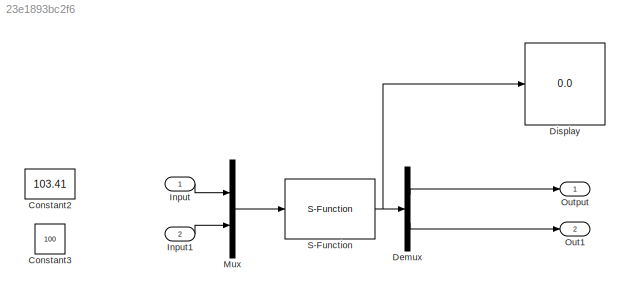
MODEL slx_23e1893bc2f6
KIND model
CONFIG AbsTol = auto
CONFIG EnableMultiTasking = off
CONFIG FixedStep = auto
CONFIG MaxStep = auto
CONFIG MinStep = auto
CONFIG RelTol = 1e-3
CONFIG SampleTimeConstraint = Unconstrained
CONFIG SolverName = VariableStepAuto
CONFIG StartTime = 0.0
CONFIG StopTime = 10.0
BLOCK [Constant] Constant2
  Value = 103.41
BLOCK [Constant] Constant3
  Value = 100
BLOCK [Demux] Demux
  Outputs = 2
  Ports = [1, 2]
BLOCK [Display] Display
  Decimation = 1
  Ports = [1]
BLOCK [Inport] Input
BLOCK [Inport] Input1
  Port = 2
BLOCK [Mux] Mux
  DisplayOption = bar
  Inputs = 2
  Ports = [2, 1]
BLOCK [Outport] Out1
  Port = 2
BLOCK [Outport] Output
  VectorParamsAs1DForOutWhenUnconnected = off
BLOCK [S-Function] S-Function
  EnableBusSupport = off
  FunctionName = pr_sfun
  Ports = [1, 1]
  SFcnIsStateOwnerBlock = off
  SFunctionDeploymentMode = off
LINE Demux:1 -> Output:1
LINE Demux:2 -> Out1:1
LINE Input1:1 -> Mux:2
LINE Input:1 -> Mux:1
LINE Mux:1 -> S-Function:1
NET S-Function:1 -> Demux:1, Display:1
note: NET lines group one-source signal fan-out (src -> all destinations, sorted); 1:1 wires keep LINE
